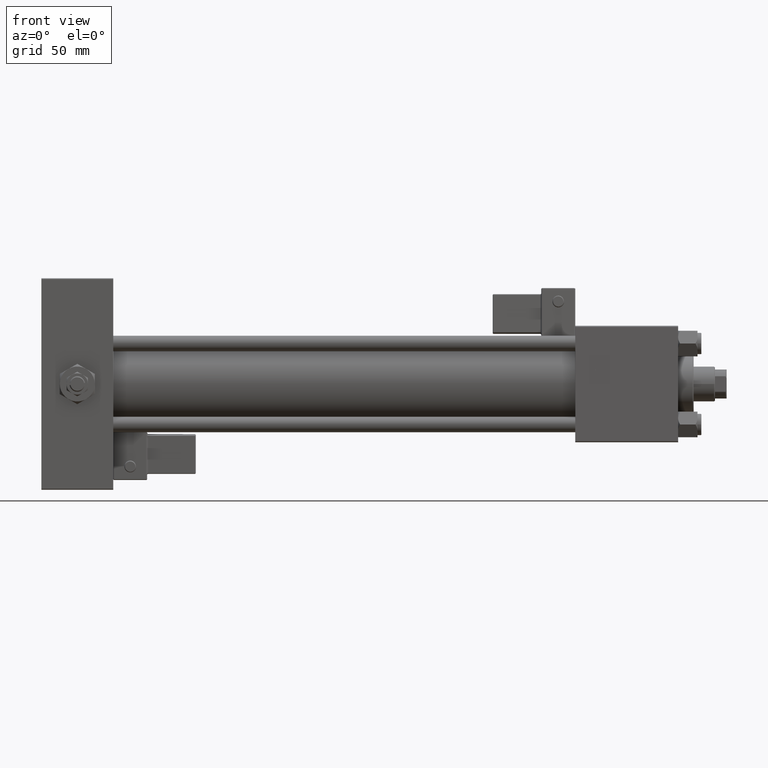
[diagram: clean part render]
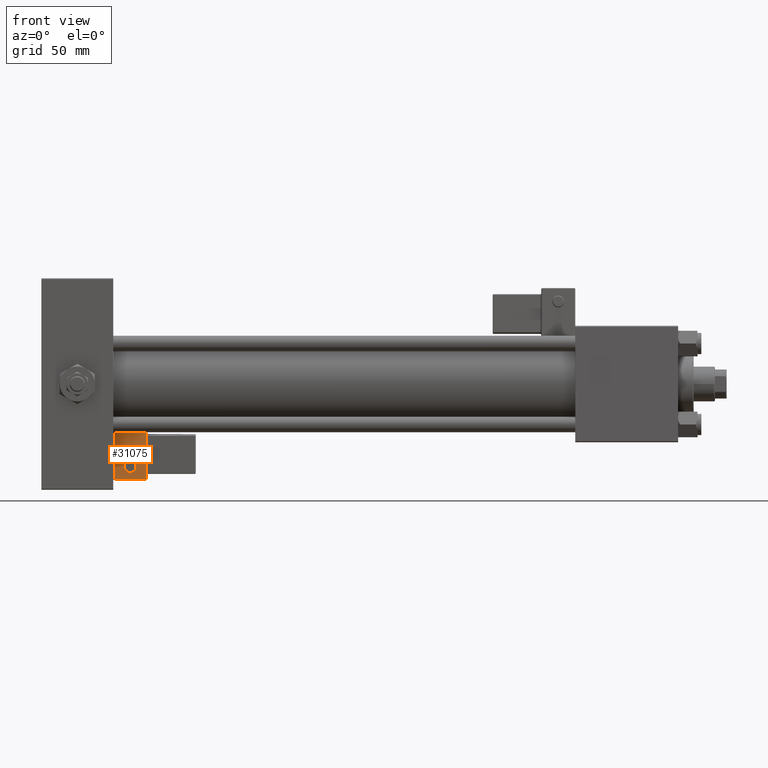
[diagram: same view with one face highlighted and labeled with its STEP entity id]
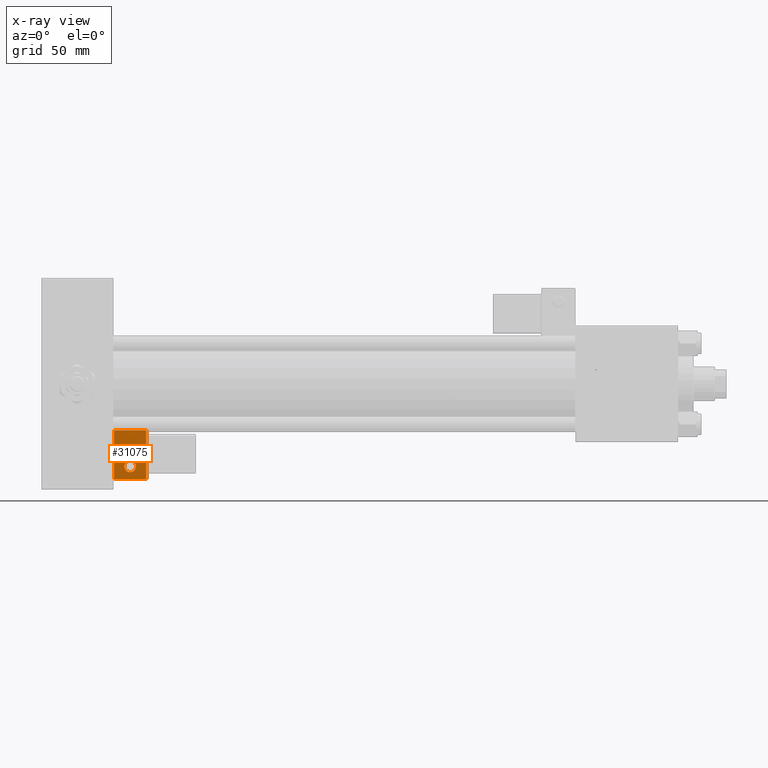
[diagram: x-ray of the same camera — body ghosted, the highlighted face saturated]
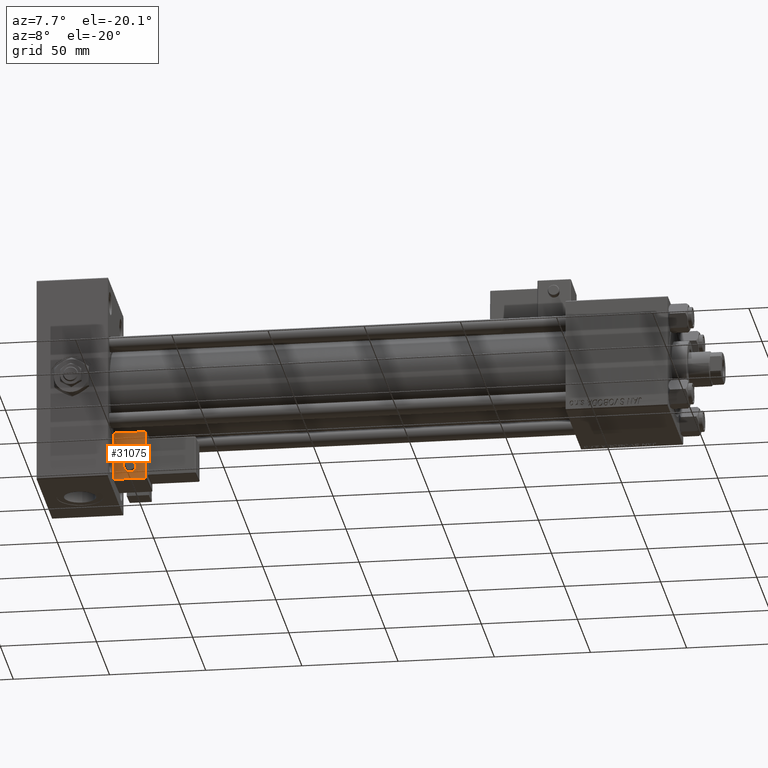
[diagram: same view with one face highlighted and labeled with its STEP entity id]
A machine part, front view. The second image highlights one B-rep face of the part: STEP entity #31075.
The next image is the same camera in x-ray: the body ghosted, the highlighted face saturated — about 0% of this face is hidden behind the body in this view.
A second angle (auxiliary view) of the same face is appended — the face is thin or edge-on in the first view.
In plain terms, the highlighted planar face has unit normal (0, 0.9994, 0.0353).
Its self-contained STEP definition (entity closure, byte-faithful):
#1987 = ORIENTED_EDGE ( 'NONE', *, *, #32991, .T. ) ;
#3276 = CARTESIAN_POINT ( 'NONE',  ( 4.857225732735059864E-15, -35.75000000000000000, 24.50000000000000000 ) ) ;
#3808 = LINE ( 'NONE', #37389, #51375 ) ;
#4064 = ORIENTED_EDGE ( 'NONE', *, *, #21750, .T. ) ;
#4835 = CARTESIAN_POINT ( 'NONE',  ( -8.250000000000000000, -35.75000000000000000, 24.50000000000000355 ) ) ;
#5435 = CARTESIAN_POINT ( 'NONE',  ( -8.250000000000003553, -35.75000000000000000, -0.5000000000000002220 ) ) ;
#6158 = CARTESIAN_POINT ( 'NONE',  ( -4.336808689942017736E-16, -35.75000000000000000, 6.000000000000001776 ) ) ;
#7237 = AXIS2_PLACEMENT_3D ( 'NONE', #36013, #15001, #10630 ) ;
#7496 = VECTOR ( 'NONE', #23497, 1000.000000000000000 ) ;
#7712 = CARTESIAN_POINT ( 'NONE',  ( -4.336808689942017736E-16, -35.75000000000000000, 9.000000000000001776 ) ) ;
#8646 = VECTOR ( 'NONE', #28760, 1000.000000000000000 ) ;
#10630 = DIRECTION ( 'NONE',  ( 0.000000000000000000, 0.000000000000000000, 1.000000000000000000 ) ) ;
#11742 = LINE ( 'NONE', #27317, #7496 ) ;
#11945 = FACE_OUTER_BOUND ( 'NONE', #18160, .T. ) ;
#12133 = VECTOR ( 'NONE', #28140, 1000.000000000000000 ) ;
#13011 = AXIS2_PLACEMENT_3D ( 'NONE', #6158, #26920, #51735 ) ;
#13289 = VERTEX_POINT ( 'NONE', #7712 ) ;
#14389 = VERTEX_POINT ( 'NONE', #4835 ) ;
#15001 = DIRECTION ( 'NONE',  ( -0.000000000000000000, -1.000000000000000000, -0.000000000000000000 ) ) ;
#16033 = PLANE ( 'NONE',  #16460 ) ;
#16460 = AXIS2_PLACEMENT_3D ( 'NONE', #24504, #25048, #37035 ) ;
#16727 = CARTESIAN_POINT ( 'NONE',  ( 0.000000000000000000, -35.75000000000000000, -0.5000000000000002220 ) ) ;
#18160 = EDGE_LOOP ( 'NONE', ( #52437, #4064, #1987, #39349 ) ) ;
#20001 = CIRCLE ( 'NONE', #13011, 2.999999999999999112 ) ;
#20208 = LINE ( 'NONE', #3276, #12133 ) ;
#21750 = EDGE_CURVE ( 'NONE', #14389, #53824, #11742, .T. ) ;
#22775 = CARTESIAN_POINT ( 'NONE',  ( 8.250000000000000000, -35.75000000000000000, 24.50000000000000000 ) ) ;
#23209 = VERTEX_POINT ( 'NONE', #29550 ) ;
#23497 = DIRECTION ( 'NONE',  ( -1.334402673828313093E-16, 0.000000000000000000, -1.000000000000000000 ) ) ;
#24474 = ORIENTED_EDGE ( 'NONE', *, *, #34607, .F. ) ;
#24504 = CARTESIAN_POINT ( 'NONE',  ( 0.000000000000000000, -35.75000000000000000, 0.000000000000000000 ) ) ;
#25048 = DIRECTION ( 'NONE',  ( 0.000000000000000000, 1.000000000000000000, 0.000000000000000000 ) ) ;
#26084 = CARTESIAN_POINT ( 'NONE',  ( 8.250000000000003553, -35.75000000000000000, -0.5000000000000002220 ) ) ;
#26920 = DIRECTION ( 'NONE',  ( -0.000000000000000000, -1.000000000000000000, -0.000000000000000000 ) ) ;
#27317 = CARTESIAN_POINT ( 'NONE',  ( -8.250000000000003553, -35.75000000000000000, 1.100882205908358788E-15 ) ) ;
#28140 = DIRECTION ( 'NONE',  ( -1.000000000000000000, 0.000000000000000000, 1.982541115402065110E-16 ) ) ;
#28760 = DIRECTION ( 'NONE',  ( 1.000000000000000000, 0.000000000000000000, 0.000000000000000000 ) ) ;
#29141 = FACE_BOUND ( 'NONE', #42106, .T. ) ;
#29550 = CARTESIAN_POINT ( 'NONE',  ( -6.628682924999581145E-17, -35.75000000000000000, 3.000000000000001776 ) ) ;
#31075 = ADVANCED_FACE ( 'NONE', ( #11945, #29141 ), #16033, .F. ) ;
#32154 = EDGE_CURVE ( 'NONE', #51494, #14389, #20208, .T. ) ;
#32991 = EDGE_CURVE ( 'NONE', #53824, #51436, #53312, .T. ) ;
#33200 = EDGE_CURVE ( 'NONE', #51436, #51494, #3808, .T. ) ;
#34607 = EDGE_CURVE ( 'NONE', #23209, #13289, #20001, .T. ) ;
#35983 = CIRCLE ( 'NONE', #7237, 2.999999999999999112 ) ;
#36013 = CARTESIAN_POINT ( 'NONE',  ( -4.336808689942017736E-16, -35.75000000000000000, 6.000000000000001776 ) ) ;
#37035 = DIRECTION ( 'NONE',  ( 0.000000000000000000, -0.000000000000000000, 1.000000000000000000 ) ) ;
#37389 = CARTESIAN_POINT ( 'NONE',  ( 8.250000000000003553, -35.75000000000000000, 1.100882205908358986E-15 ) ) ;
#39349 = ORIENTED_EDGE ( 'NONE', *, *, #33200, .T. ) ;
#42106 = EDGE_LOOP ( 'NONE', ( #47270, #24474 ) ) ;
#42490 = EDGE_CURVE ( 'NONE', #13289, #23209, #35983, .T. ) ;
#45861 = DIRECTION ( 'NONE',  ( -1.334402673828313339E-16, 0.000000000000000000, 1.000000000000000000 ) ) ;
#47270 = ORIENTED_EDGE ( 'NONE', *, *, #42490, .F. ) ;
#51375 = VECTOR ( 'NONE', #45861, 1000.000000000000000 ) ;
#51436 = VERTEX_POINT ( 'NONE', #26084 ) ;
#51494 = VERTEX_POINT ( 'NONE', #22775 ) ;
#51735 = DIRECTION ( 'NONE',  ( 0.000000000000000000, 0.000000000000000000, 1.000000000000000000 ) ) ;
#52437 = ORIENTED_EDGE ( 'NONE', *, *, #32154, .T. ) ;
#53312 = LINE ( 'NONE', #16727, #8646 ) ;
#53824 = VERTEX_POINT ( 'NONE', #5435 ) ;